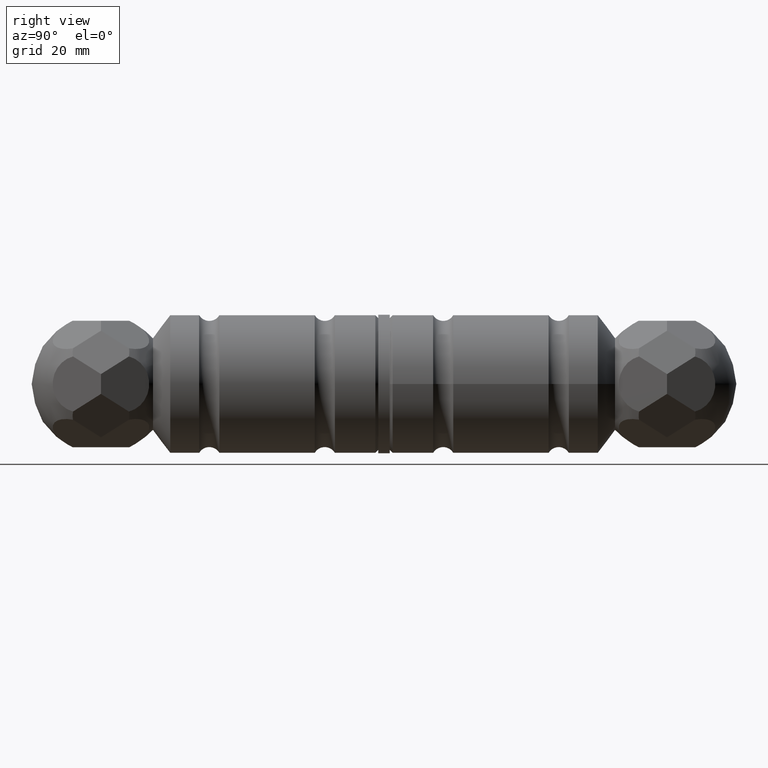
[diagram: clean part render]
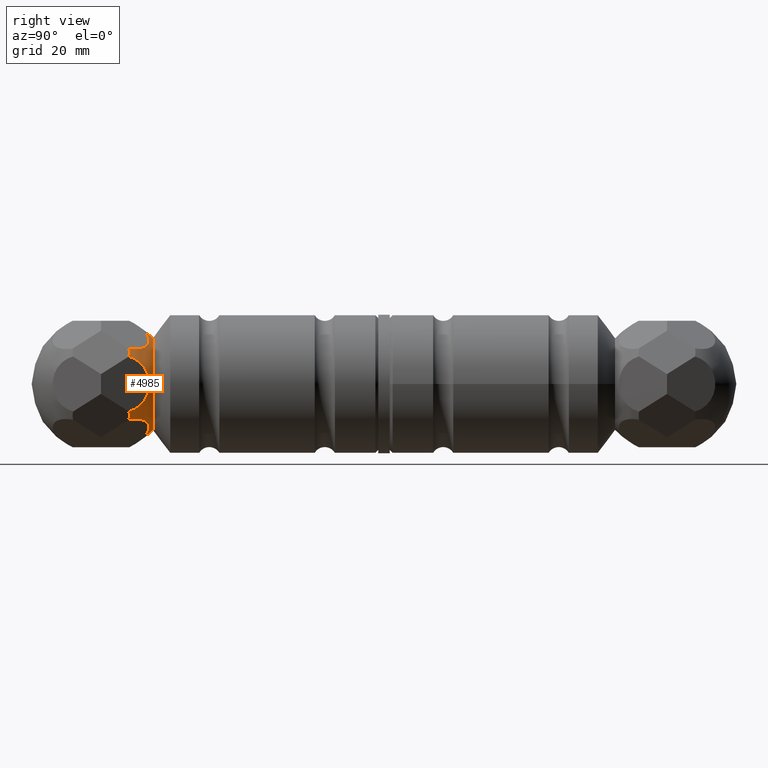
[diagram: same view with one face highlighted and labeled with its STEP entity id]
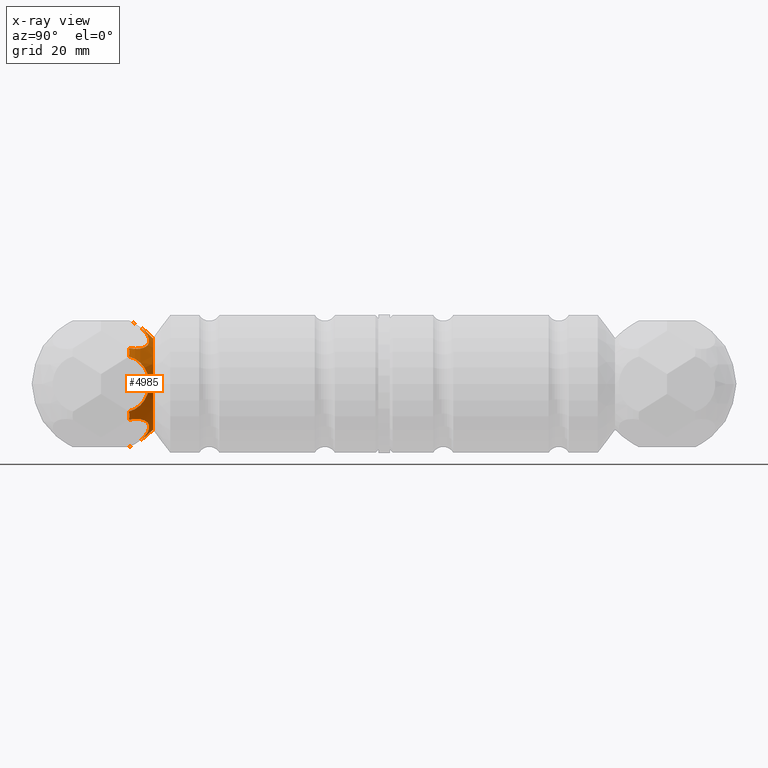
[diagram: x-ray of the same camera — body ghosted, the highlighted face saturated]
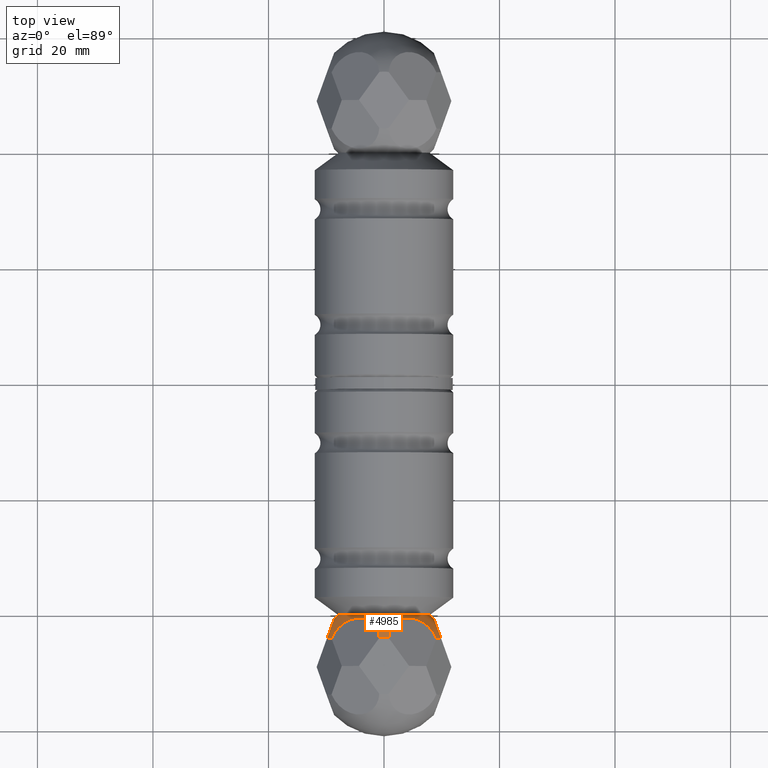
[diagram: same view with one face highlighted and labeled with its STEP entity id]
A machine part, right view. The second image highlights one B-rep face of the part: STEP entity #4985.
The next image is the same camera in x-ray: the body ghosted, the highlighted face saturated — about 0% of this face is hidden behind the body in this view.
A second angle (top view) of the same face is appended — the face is thin or edge-on in the first view.
In plain terms, the highlighted spherical surface has radius 12 mm.
Its self-contained STEP definition (entity closure, byte-faithful):
#71 = DIRECTION ( 'NONE',  ( -0.9396926207859083169, 0.3420201433256694346, -0.000000000000000000 ) ) ;
#105 = CARTESIAN_POINT ( 'NONE',  ( -9.075063361976004828, 43.15934694148807438, 6.181529175150754618 ) ) ;
#213 = CIRCLE ( 'NONE', #2372, 4.908920451586054057 ) ;
#243 = CARTESIAN_POINT ( 'NONE',  ( 5.144817098802824340, 44.25487943058391949, 8.911084610775647619 ) ) ;
#287 = CARTESIAN_POINT ( 'NONE',  ( 9.890892980903240428, 43.15934694148808859, 4.768470824849224243 ) ) ;
#360 = DIRECTION ( 'NONE',  ( 0.4999999999999946709, 0.000000000000000000, 0.8660254037844417052 ) ) ;
#400 = CARTESIAN_POINT ( 'NONE',  ( 9.482978171439640391, 47.99999999999999289, -5.474999999999947242 ) ) ;
#893 = DIRECTION ( 'NONE',  ( -1.060262988517024338E-14, 4.461165032909084819E-46, 1.000000000000000000 ) ) ;
#951 = ORIENTED_EDGE ( 'NONE', *, *, #12082, .F. ) ;
#1151 = DIRECTION ( 'NONE',  ( 0.8660254037844345998, -8.938567588209330689E-32, 0.5000000000000072164 ) ) ;
#1477 = DIRECTION ( 'NONE',  ( -0.4698463103929635398, 0.3420201433256693790, 0.8137976813493679185 ) ) ;
#1595 = EDGE_CURVE ( 'NONE', #7115, #11089, #3866, .T. ) ;
#1856 = CIRCLE ( 'NONE', #4271, 4.908920451586054057 ) ;
#1870 = AXIS2_PLACEMENT_3D ( 'NONE', #5442, #3590, #11110 ) ;
#1894 = EDGE_CURVE ( 'NONE', #11243, #11243, #8874, .T. ) ;
#2253 = CARTESIAN_POINT ( 'NONE',  ( 9.075063361976043907, 43.15934694148807438, -6.181529175150683564 ) ) ;
#2303 = DIRECTION ( 'NONE',  ( -0.8660254037844417052, 6.468871966888534240E-32, 0.4999999999999948930 ) ) ;
#2372 = AXIS2_PLACEMENT_3D ( 'NONE', #11352, #893, #7458 ) ;
#2376 = EDGE_CURVE ( 'NONE', #7807, #10681, #11215, .T. ) ;
#2520 = VERTEX_POINT ( 'NONE', #10972 ) ;
#2566 = VERTEX_POINT ( 'NONE', #105 ) ;
#2595 = CIRCLE ( 'NONE', #3972, 4.908920451586066491 ) ;
#2598 = VERTEX_POINT ( 'NONE', #10298 ) ;
#2599 = EDGE_CURVE ( 'NONE', #11676, #11724, #10066, .T. ) ;
#2825 = AXIS2_PLACEMENT_3D ( 'NONE', #243, #6976, #9697 ) ;
#2908 = CARTESIAN_POINT ( 'NONE',  ( -5.144817098802890065, 44.25487943058391949, 8.911084610775617421 ) ) ;
#3072 = CARTESIAN_POINT ( 'NONE',  ( -10.28963419760569131, 44.25487943058391949, -8.528527880266674813E-33 ) ) ;
#3211 = DIRECTION ( 'NONE',  ( -0.8660254037844328234, 0.000000000000000000, -0.5000000000000101030 ) ) ;
#3217 = VERTEX_POINT ( 'NONE', #287 ) ;
#3339 = DIRECTION ( 'NONE',  ( -0.4999999999999946709, 0.000000000000000000, -0.8660254037844417052 ) ) ;
#3446 = AXIS2_PLACEMENT_3D ( 'NONE', #3072, #8664, #3969 ) ;
#3590 = DIRECTION ( 'NONE',  ( 6.162975822039154730E-32, -1.000000000000000000, 0.000000000000000000 ) ) ;
#3633 = CIRCLE ( 'NONE', #8677, 4.908920451586062939 ) ;
#3866 = CIRCLE ( 'NONE', #3446, 4.908920451586074485 ) ;
#3969 = DIRECTION ( 'NONE',  ( 0.3420201433256693790, -0.9396926207859080948, 0.000000000000000000 ) ) ;
#3972 = AXIS2_PLACEMENT_3D ( 'NONE', #9820, #10622, #5023 ) ;
#4037 = DIRECTION ( 'NONE',  ( -0.8660254037844433705, 0.000000000000000000, 0.4999999999999920619 ) ) ;
#4125 = ORIENTED_EDGE ( 'NONE', *, *, #9435, .T. ) ;
#4126 = DIRECTION ( 'NONE',  ( 0.8660254037844417052, -6.468871966888534240E-32, -0.4999999999999948930 ) ) ;
#4154 = CARTESIAN_POINT ( 'NONE',  ( -9.482978171439643944, 47.99999999999999289, 5.474999999999947242 ) ) ;
#4271 = AXIS2_PLACEMENT_3D ( 'NONE', #400, #4126, #360 ) ;
#4339 = DIRECTION ( 'NONE',  ( -0.8660254037844310471, 8.938567588209319741E-32, -0.5000000000000132117 ) ) ;
#4506 = ORIENTED_EDGE ( 'NONE', *, *, #11780, .T. ) ;
#4706 = EDGE_CURVE ( 'NONE', #9375, #2598, #10591, .T. ) ;
#4857 = CIRCLE ( 'NONE', #11281, 4.908920451586054057 ) ;
#4985 = ADVANCED_FACE ( 'NONE', ( #8972, #11758 ), #9558, .T. ) ;
#5023 = DIRECTION ( 'NONE',  ( 1.000000000000000000, 0.000000000000000000, 1.766909336874994529E-14 ) ) ;
#5369 = CIRCLE ( 'NONE', #11772, 4.908920451586058498 ) ;
#5371 = ORIENTED_EDGE ( 'NONE', *, *, #4706, .T. ) ;
#5382 = ORIENTED_EDGE ( 'NONE', *, *, #1894, .F. ) ;
#5442 = CARTESIAN_POINT ( 'NONE',  ( 0.000000000000000000, 39.00000000000001421, 0.000000000000000000 ) ) ;
#5533 = DIRECTION ( 'NONE',  ( 0.4698463103929579332, 0.3420201433256693790, -0.8137976813493713601 ) ) ;
#5577 = CARTESIAN_POINT ( 'NONE',  ( -0.8158296189271487808, 43.15934694148807438, -10.95000000000001528 ) ) ;
#5605 = CARTESIAN_POINT ( 'NONE',  ( 9.075063361975958642, 43.15934694148806017, 6.181529175150805244 ) ) ;
#5606 = DIRECTION ( 'NONE',  ( 0.8660254037844363761, 0.000000000000000000, 0.5000000000000041078 ) ) ;
#5669 = CARTESIAN_POINT ( 'NONE',  ( 0.8158296189273830379, 43.15934694148804596, -10.94999999999998685 ) ) ;
#6002 = CARTESIAN_POINT ( 'NONE',  ( 5.144817098802950461, 44.25487943058391949, -8.911084610775576564 ) ) ;
#6017 = DIRECTION ( 'NONE',  ( -0.5000000000000073275, 0.000000000000000000, 0.8660254037844344888 ) ) ;
#6134 = AXIS2_PLACEMENT_3D ( 'NONE', #11231, #6885, #4037 ) ;
#6302 = AXIS2_PLACEMENT_3D ( 'NONE', #6002, #1477, #3211 ) ;
#6358 = ORIENTED_EDGE ( 'NONE', *, *, #11265, .F. ) ;
#6475 = CARTESIAN_POINT ( 'NONE',  ( 0.000000000000000000, 47.99999999999999289, 1.368455531567204171E-45 ) ) ;
#6476 = ORIENTED_EDGE ( 'NONE', *, *, #2376, .T. ) ;
#6885 = DIRECTION ( 'NONE',  ( 0.4698463103929464979, 0.3420201433256693790, 0.8137976813493777994 ) ) ;
#6976 = DIRECTION ( 'NONE',  ( -0.4698463103929521600, 0.3420201433256693790, -0.8137976813493744688 ) ) ;
#6995 = ORIENTED_EDGE ( 'NONE', *, *, #1595, .T. ) ;
#7065 = CARTESIAN_POINT ( 'NONE',  ( -9.890892980903240428, 43.15934694148810280, -4.768470824849232237 ) ) ;
#7115 = VERTEX_POINT ( 'NONE', #10602 ) ;
#7369 = EDGE_CURVE ( 'NONE', #2520, #2598, #213, .T. ) ;
#7458 = DIRECTION ( 'NONE',  ( -1.000000000000000000, 0.000000000000000000, -1.060145602124999431E-14 ) ) ;
#7491 = EDGE_CURVE ( 'NONE', #8186, #10681, #1856, .T. ) ;
#7524 = EDGE_LOOP ( 'NONE', ( #951, #5371, #10962, #4506, #8877, #6995, #9518, #9204, #6358, #6476, #9300, #4125 ) ) ;
#7618 = DIRECTION ( 'NONE',  ( 0.3420201433256693790, 0.9396926207859080948, 1.776356839400250070E-15 ) ) ;
#7695 = CARTESIAN_POINT ( 'NONE',  ( 9.482978171439560455, 47.99999999999999289, 5.475000000000080469 ) ) ;
#7719 = EDGE_CURVE ( 'NONE', #11676, #11089, #3633, .T. ) ;
#7807 = VERTEX_POINT ( 'NONE', #5669 ) ;
#7878 = EDGE_LOOP ( 'NONE', ( #5382 ) ) ;
#8186 = VERTEX_POINT ( 'NONE', #11800 ) ;
#8280 = DIRECTION ( 'NONE',  ( -0.000000000000000000, 0.000000000000000000, 1.000000000000000000 ) ) ;
#8664 = DIRECTION ( 'NONE',  ( 0.9396926207859083169, 0.3420201433256694346, -0.000000000000000000 ) ) ;
#8677 = AXIS2_PLACEMENT_3D ( 'NONE', #9992, #4339, #10909 ) ;
#8874 = CIRCLE ( 'NONE', #1870, 7.937253933193772149 ) ;
#8877 = ORIENTED_EDGE ( 'NONE', *, *, #8891, .F. ) ;
#8891 = EDGE_CURVE ( 'NONE', #7115, #2566, #4857, .T. ) ;
#8972 = FACE_OUTER_BOUND ( 'NONE', #7878, .T. ) ;
#9204 = ORIENTED_EDGE ( 'NONE', *, *, #2599, .T. ) ;
#9229 = AXIS2_PLACEMENT_3D ( 'NONE', #6475, #8280, #11990 ) ;
#9300 = ORIENTED_EDGE ( 'NONE', *, *, #7491, .F. ) ;
#9375 = VERTEX_POINT ( 'NONE', #5605 ) ;
#9435 = EDGE_CURVE ( 'NONE', #8186, #3217, #9656, .T. ) ;
#9477 = CARTESIAN_POINT ( 'NONE',  ( 10.28963419760569131, 44.25487943058391949, -1.005364035004034762E-33 ) ) ;
#9518 = ORIENTED_EDGE ( 'NONE', *, *, #7719, .F. ) ;
#9558 = SPHERICAL_SURFACE ( 'NONE', #9229, 11.99999999999999822 ) ;
#9559 = AXIS2_PLACEMENT_3D ( 'NONE', #9477, #71, #7618 ) ;
#9644 = CIRCLE ( 'NONE', #10910, 4.908920451586062939 ) ;
#9656 = CIRCLE ( 'NONE', #9559, 4.908920451586074485 ) ;
#9697 = DIRECTION ( 'NONE',  ( 0.8660254037844400399, 1.413527469499992523E-15, -0.4999999999999974465 ) ) ;
#9820 = CARTESIAN_POINT ( 'NONE',  ( 1.932953797023628997E-13, 47.99999999999999289, -10.95000000000000107 ) ) ;
#9992 = CARTESIAN_POINT ( 'NONE',  ( -9.482978171439523152, 47.99999999999999289, -5.475000000000145306 ) ) ;
#10066 = CIRCLE ( 'NONE', #6134, 4.908920451586072708 ) ;
#10298 = CARTESIAN_POINT ( 'NONE',  ( 0.8158296189272368215, 43.15934694148810280, 10.95000000000001528 ) ) ;
#10591 = CIRCLE ( 'NONE', #2825, 4.908920451586077149 ) ;
#10602 = CARTESIAN_POINT ( 'NONE',  ( -9.890892980903235099, 43.15934694148807438, 4.768470824849212697 ) ) ;
#10622 = DIRECTION ( 'NONE',  ( 1.765254609153998899E-14, -8.812853623292794860E-46, -1.000000000000000000 ) ) ;
#10681 = VERTEX_POINT ( 'NONE', #2253 ) ;
#10909 = DIRECTION ( 'NONE',  ( 0.5000000000000132117, 0.000000000000000000, -0.8660254037844309360 ) ) ;
#10910 = AXIS2_PLACEMENT_3D ( 'NONE', #2908, #5533, #5606 ) ;
#10962 = ORIENTED_EDGE ( 'NONE', *, *, #7369, .F. ) ;
#10972 = CARTESIAN_POINT ( 'NONE',  ( -0.8158296189273280818, 43.15934694148807438, 10.94999999999999751 ) ) ;
#11089 = VERTEX_POINT ( 'NONE', #7065 ) ;
#11110 = DIRECTION ( 'NONE',  ( 0.000000000000000000, 0.000000000000000000, -1.000000000000000000 ) ) ;
#11196 = CARTESIAN_POINT ( 'NONE',  ( -9.075063361975908904, 43.15934694148804596, -6.181529175150872746 ) ) ;
#11215 = CIRCLE ( 'NONE', #6302, 4.908920451586072708 ) ;
#11231 = CARTESIAN_POINT ( 'NONE',  ( -5.144817098802763056, 44.25487943058391949, -8.911084610775684922 ) ) ;
#11243 = VERTEX_POINT ( 'NONE', #11680 ) ;
#11265 = EDGE_CURVE ( 'NONE', #7807, #11724, #2595, .T. ) ;
#11281 = AXIS2_PLACEMENT_3D ( 'NONE', #4154, #2303, #3339 ) ;
#11352 = CARTESIAN_POINT ( 'NONE',  ( -1.160987972426142227E-13, 47.99999999999999289, 10.95000000000000639 ) ) ;
#11676 = VERTEX_POINT ( 'NONE', #11196 ) ;
#11680 = CARTESIAN_POINT ( 'NONE',  ( 0.000000000000000000, 39.00000000000001421, -7.937253933193772149 ) ) ;
#11724 = VERTEX_POINT ( 'NONE', #5577 ) ;
#11758 = FACE_OUTER_BOUND ( 'NONE', #7524, .T. ) ;
#11772 = AXIS2_PLACEMENT_3D ( 'NONE', #7695, #1151, #6017 ) ;
#11780 = EDGE_CURVE ( 'NONE', #2520, #2566, #9644, .T. ) ;
#11800 = CARTESIAN_POINT ( 'NONE',  ( 9.890892980903235099, 43.15934694148807438, -4.768470824849212697 ) ) ;
#11990 = DIRECTION ( 'NONE',  ( 1.000000000000000000, 0.000000000000000000, 0.000000000000000000 ) ) ;
#12082 = EDGE_CURVE ( 'NONE', #9375, #3217, #5369, .T. ) ;